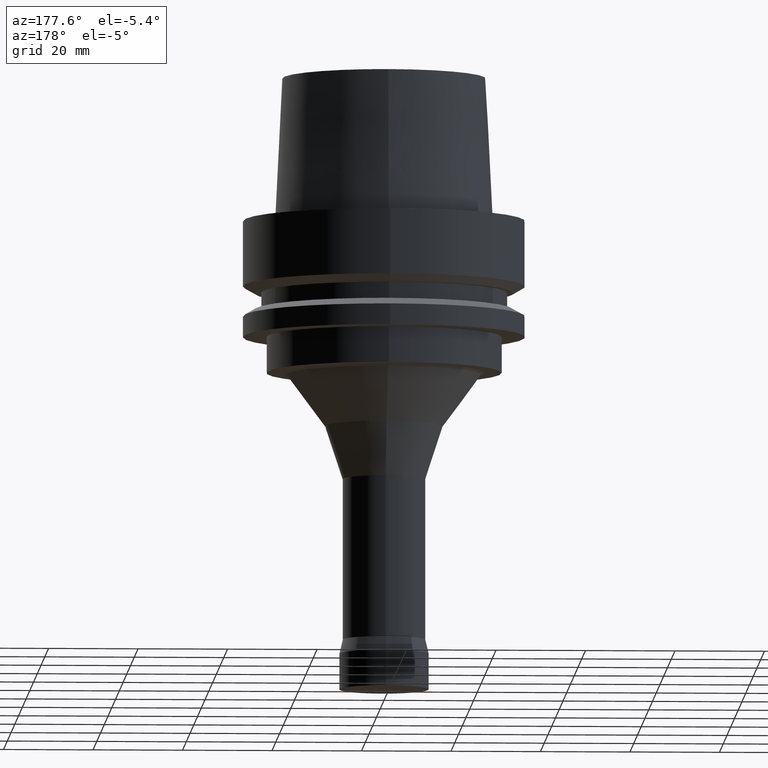
[diagram: clean part render]
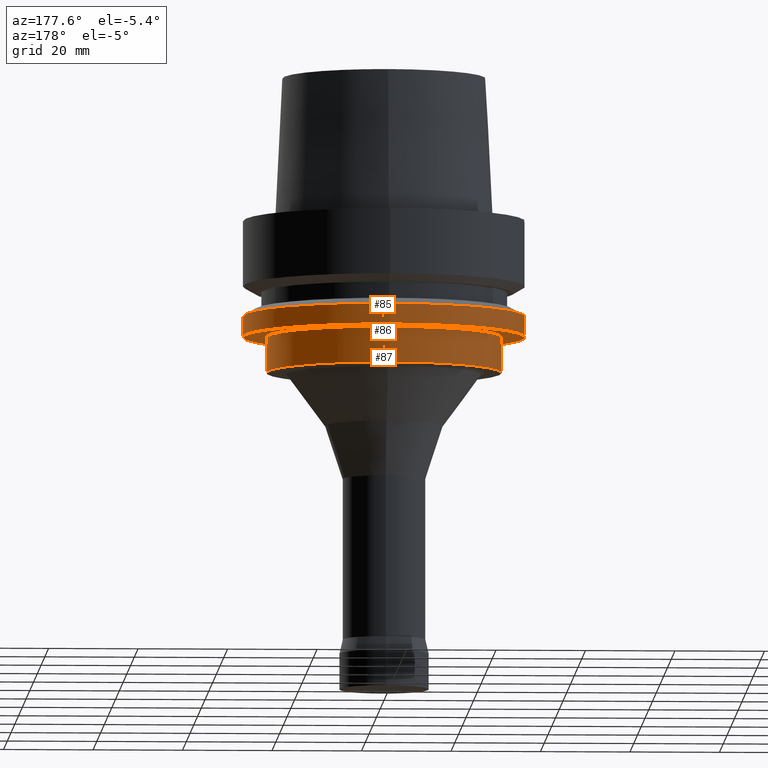
[diagram: same view with one multi-face feature highlighted, each face labeled with its STEP entity id]
A machine part, auxiliary view. The highlighted faces form ONE feature: a stepped (counterbored) hole: 2 coaxial cylindrical walls of radii 26.3 -> 31.5 mm joined by 1 annular planar shoulder face(s). The faces share edges in the B-rep.
Their STEP definitions:
[1] entity #85 (Cylinder):
#85=ADVANCED_FACE('',(#124,#125),#126,.T.);
#124=FACE_BOUND('',#182,.T.);
#125=FACE_BOUND('',#183,.T.);
#126=CYLINDRICAL_SURFACE('',#184,31.5);
#182=EDGE_LOOP('',(#260));
#183=EDGE_LOOP('',(#261));
#184=AXIS2_PLACEMENT_3D('',#262,#263,#264);
#260=ORIENTED_EDGE('',*,*,#320,.F.);
#261=ORIENTED_EDGE('',*,*,#319,.T.);
#262=CARTESIAN_POINT('',(1.45051756469206E-015,2.90103512938411E-015,-23.688749535));
#263=DIRECTION('',(-6.12323399573677E-017,-1.22464679914735E-016,1.0));
#264=DIRECTION('',(-1.23259516440783E-032,1.0,1.22464679914735E-016));
#319=EDGE_CURVE('',#347,#347,#348,.T.);
#320=EDGE_CURVE('',#349,#349,#350,.T.);
#347=VERTEX_POINT('',#385);
#348=CIRCLE('',#386,31.5);
#349=VERTEX_POINT('',#387);
#350=CIRCLE('',#388,31.5);
#385=CARTESIAN_POINT('',(1.30899429049255E-015,31.5,-21.37749907));
#386=AXIS2_PLACEMENT_3D('',#432,#433,#434);
#387=CARTESIAN_POINT('',(1.59204083889156E-015,31.5,-26.0));
#388=AXIS2_PLACEMENT_3D('',#435,#436,#437);
#432=CARTESIAN_POINT('',(1.30899429049255E-015,2.6179885809851E-015,-21.37749907));
#433=DIRECTION('',(6.12323399573677E-017,1.22464679914735E-016,-1.0));
#434=DIRECTION('',(-1.23259516440783E-032,1.0,1.22464679914735E-016));
#435=CARTESIAN_POINT('',(1.59204083889156E-015,3.18408167778312E-015,-26.0));
#436=DIRECTION('',(6.12323399573677E-017,1.22464679914735E-016,-1.0));
#437=DIRECTION('',(-1.23259516440783E-032,1.0,1.22464679914735E-016));
[2] entity #87 (Cylinder):
#87=ADVANCED_FACE('',(#130,#131),#132,.T.);
#130=FACE_BOUND('',#188,.T.);
#131=FACE_BOUND('',#189,.T.);
#132=CYLINDRICAL_SURFACE('',#190,26.3);
#188=EDGE_LOOP('',(#270));
#189=EDGE_LOOP('',(#271));
#190=AXIS2_PLACEMENT_3D('',#272,#273,#274);
#270=ORIENTED_EDGE('',*,*,#322,.F.);
#271=ORIENTED_EDGE('',*,*,#321,.T.);
#272=CARTESIAN_POINT('',(1.83697019872103E-015,3.67394039744206E-015,-30.0));
#273=DIRECTION('',(-6.12323399573677E-017,-1.22464679914735E-016,1.0));
#274=DIRECTION('',(-1.23259516440783E-032,1.0,1.22464679914735E-016));
#321=EDGE_CURVE('',#351,#351,#352,.T.);
#322=EDGE_CURVE('',#353,#353,#354,.T.);
#351=VERTEX_POINT('',#389);
#352=CIRCLE('',#390,26.3);
#353=VERTEX_POINT('',#391);
#354=CIRCLE('',#392,26.3);
#389=CARTESIAN_POINT('',(1.59204083889156E-015,26.3,-26.0));
#390=AXIS2_PLACEMENT_3D('',#438,#439,#440);
#391=CARTESIAN_POINT('',(2.0818995585505E-015,26.3,-34.0));
#392=AXIS2_PLACEMENT_3D('',#441,#442,#443);
#438=CARTESIAN_POINT('',(1.59204083889156E-015,3.18408167778312E-015,-26.0));
#439=DIRECTION('',(6.12323399573677E-017,1.22464679914735E-016,-1.0));
#440=DIRECTION('',(-1.23259516440783E-032,1.0,1.22464679914735E-016));
#441=CARTESIAN_POINT('',(2.0818995585505E-015,4.163799117101E-015,-34.0));
#442=DIRECTION('',(6.12323399573677E-017,1.22464679914735E-016,-1.0));
#443=DIRECTION('',(-1.23259516440783E-032,1.0,1.22464679914735E-016));
[3] entity #86 (Plane):
#86=ADVANCED_FACE('',(#127,#128),#129,.T.);
#127=FACE_BOUND('',#185,.T.);
#128=FACE_OUTER_BOUND('',#186,.T.);
#129=PLANE('',#187);
#185=EDGE_LOOP('',(#265));
#186=EDGE_LOOP('',(#266));
#187=AXIS2_PLACEMENT_3D('',#267,#268,#269);
#265=ORIENTED_EDGE('',*,*,#321,.F.);
#266=ORIENTED_EDGE('',*,*,#320,.T.);
#267=CARTESIAN_POINT('',(1.59204083889156E-015,28.9,-26.0));
#268=DIRECTION('',(6.12323399573677E-017,1.22464679914735E-016,-1.0));
#269=DIRECTION('',(-1.23259516440783E-032,1.0,1.22464679914735E-016));
#320=EDGE_CURVE('',#349,#349,#350,.T.);
#321=EDGE_CURVE('',#351,#351,#352,.T.);
#349=VERTEX_POINT('',#387);
#350=CIRCLE('',#388,31.5);
#351=VERTEX_POINT('',#389);
#352=CIRCLE('',#390,26.3);
#387=CARTESIAN_POINT('',(1.59204083889156E-015,31.5,-26.0));
#388=AXIS2_PLACEMENT_3D('',#435,#436,#437);
#389=CARTESIAN_POINT('',(1.59204083889156E-015,26.3,-26.0));
#390=AXIS2_PLACEMENT_3D('',#438,#439,#440);
#435=CARTESIAN_POINT('',(1.59204083889156E-015,3.18408167778312E-015,-26.0));
#436=DIRECTION('',(6.12323399573677E-017,1.22464679914735E-016,-1.0));
#437=DIRECTION('',(-1.23259516440783E-032,1.0,1.22464679914735E-016));
#438=CARTESIAN_POINT('',(1.59204083889156E-015,3.18408167778312E-015,-26.0));
#439=DIRECTION('',(6.12323399573677E-017,1.22464679914735E-016,-1.0));
#440=DIRECTION('',(-1.23259516440783E-032,1.0,1.22464679914735E-016));